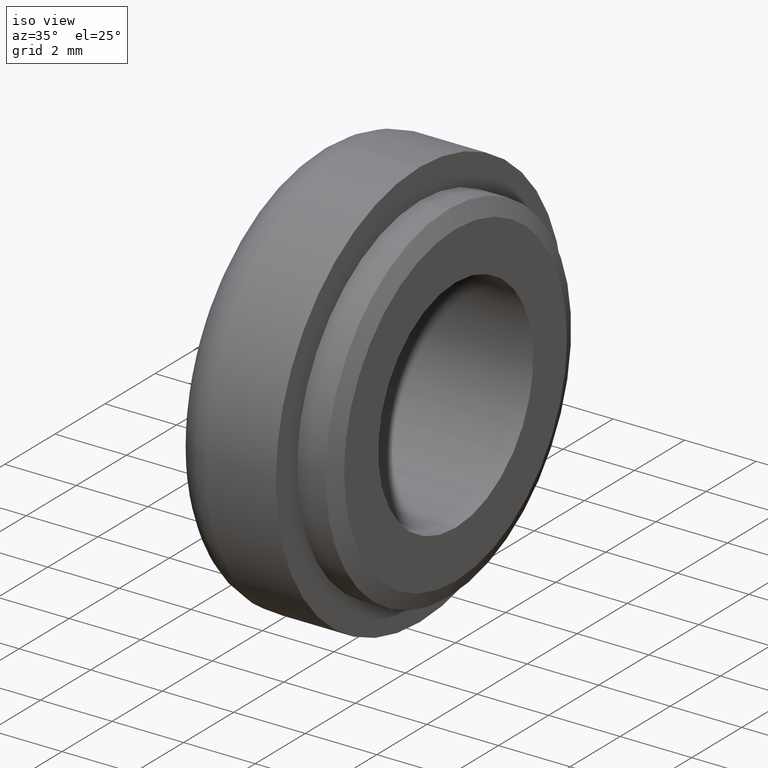
[diagram: clean part render]
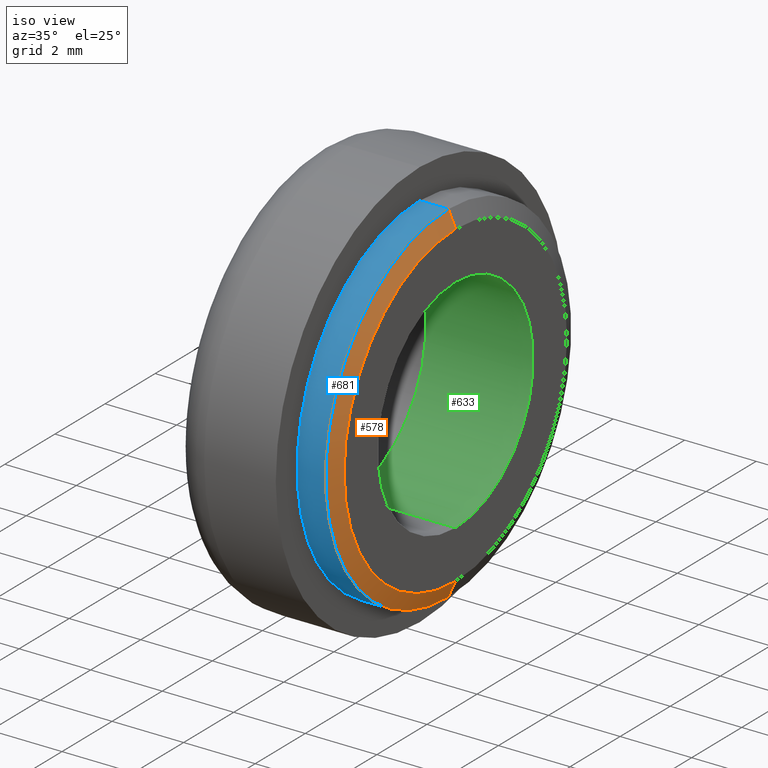
[diagram: same view with three faces highlighted in distinct colors, each labeled with its STEP entity id]
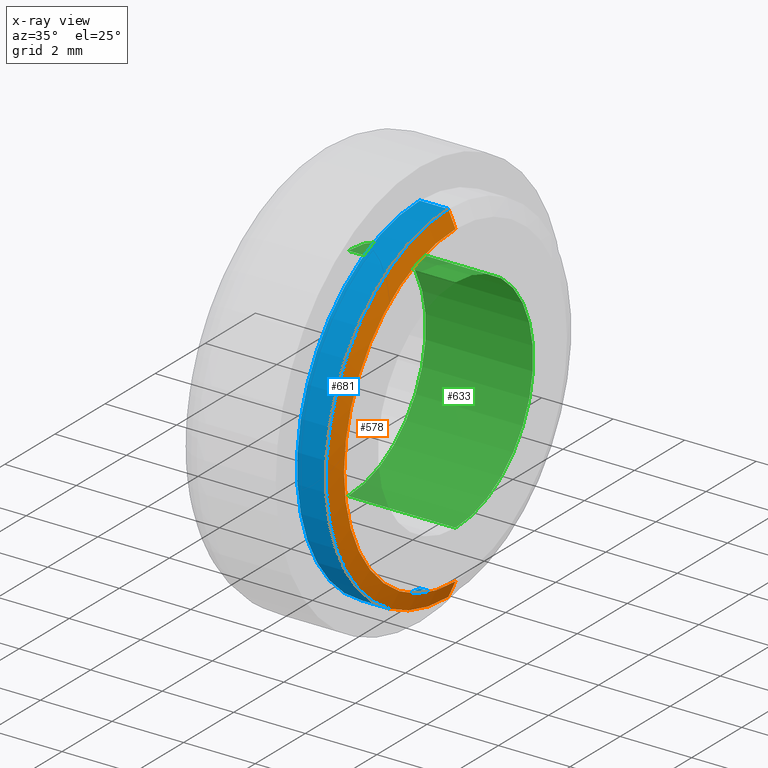
[diagram: x-ray of the same camera — body ghosted, the three highlighted faces saturated]
A machine part, iso view with three faces highlighted in distinct colors.
The next image is the same camera in x-ray (body ghosted, the three faces saturated) — at least one of them is partly hidden behind the body in this view.
Their STEP definitions:

[orange] entity #578 — the highlighted conical surface has half-angle 66.038 deg.
#2 = VERTEX_POINT ( 'NONE', #193 ) ;
#41 = CIRCLE ( 'NONE', #42, 4.450000000000000200 ) ;
#42 = AXIS2_PLACEMENT_3D ( 'NONE', #439, #95, #495 ) ;
#43 = DIRECTION ( 'NONE',  ( 0.0000000000000000000, 0.0000000000000000000, 1.000000000000000000 ) ) ;
#51 = CARTESIAN_POINT ( 'NONE',  ( 3.000000000000002700, 5.449678256205721800E-016, -4.450000000000000200 ) ) ;
#75 = EDGE_CURVE ( 'NONE', #82, #178, #429, .T. ) ;
#82 = VERTEX_POINT ( 'NONE', #404 ) ;
#90 = CIRCLE ( 'NONE', #465, 4.900000000000000400 ) ;
#95 = DIRECTION ( 'NONE',  ( -1.000000000000000000, -0.0000000000000000000, -0.0000000000000000000 ) ) ;
#131 = AXIS2_PLACEMENT_3D ( 'NONE', #603, #550, #43 ) ;
#153 = EDGE_CURVE ( 'NONE', #552, #178, #90, .T. ) ;
#178 = VERTEX_POINT ( 'NONE', #488 ) ;
#193 = CARTESIAN_POINT ( 'NONE',  ( 3.000000000000002700, 5.725223786013876300E-016, -4.450000000000000200 ) ) ;
#210 = CARTESIAN_POINT ( 'NONE',  ( 2.799999999999997200, 6.000769315822031700E-016, -4.900000000000000400 ) ) ;
#246 = ORIENTED_EDGE ( 'NONE', *, *, #75, .T. ) ;
#249 = ORIENTED_EDGE ( 'NONE', *, *, #153, .F. ) ;
#256 = DIRECTION ( 'NONE',  ( -0.4061384660534569400, 0.0000000000000000000, 0.9138115486202530400 ) ) ;
#262 = EDGE_CURVE ( 'NONE', #2, #552, #479, .T. ) ;
#265 = CARTESIAN_POINT ( 'NONE',  ( 2.799999999999997200, 0.0000000000000000000, 0.0000000000000000000 ) ) ;
#266 = VECTOR ( 'NONE', #256, 1000.000000000000000 ) ;
#324 = DIRECTION ( 'NONE',  ( 0.0000000000000000000, 0.0000000000000000000, 1.000000000000000000 ) ) ;
#329 = VECTOR ( 'NONE', #461, 1000.000000000000000 ) ;
#383 = ORIENTED_EDGE ( 'NONE', *, *, #262, .F. ) ;
#404 = CARTESIAN_POINT ( 'NONE',  ( 3.000000000000002700, 0.0000000000000000000, 4.450000000000000200 ) ) ;
#408 = ORIENTED_EDGE ( 'NONE', *, *, #532, .T. ) ;
#429 = LINE ( 'NONE', #589, #266 ) ;
#439 = CARTESIAN_POINT ( 'NONE',  ( 3.000000000000002700, 0.0000000000000000000, 0.0000000000000000000 ) ) ;
#446 = CONICAL_SURFACE ( 'NONE', #131, 4.450000000000000200, 1.152571997215657400 ) ;
#461 = DIRECTION ( 'NONE',  ( -0.4061384660534569400, 1.119096388041678900E-016, -0.9138115486202530400 ) ) ;
#465 = AXIS2_PLACEMENT_3D ( 'NONE', #265, #650, #324 ) ;
#471 = FACE_OUTER_BOUND ( 'NONE', #508, .T. ) ;
#479 = LINE ( 'NONE', #51, #329 ) ;
#488 = CARTESIAN_POINT ( 'NONE',  ( 2.799999999999997200, 0.0000000000000000000, 4.900000000000000400 ) ) ;
#495 = DIRECTION ( 'NONE',  ( 0.0000000000000000000, 0.0000000000000000000, 1.000000000000000000 ) ) ;
#508 = EDGE_LOOP ( 'NONE', ( #383, #408, #246, #249 ) ) ;
#532 = EDGE_CURVE ( 'NONE', #2, #82, #41, .T. ) ;
#550 = DIRECTION ( 'NONE',  ( -1.000000000000000000, -0.0000000000000000000, -0.0000000000000000000 ) ) ;
#552 = VERTEX_POINT ( 'NONE', #210 ) ;
#578 = ADVANCED_FACE ( 'NONE', ( #471 ), #446, .T. ) ;
#589 = CARTESIAN_POINT ( 'NONE',  ( 3.000000000000002700, 0.0000000000000000000, 4.450000000000000200 ) ) ;
#603 = CARTESIAN_POINT ( 'NONE',  ( 3.000000000000002700, 0.0000000000000000000, 0.0000000000000000000 ) ) ;
#650 = DIRECTION ( 'NONE',  ( -1.000000000000000000, -0.0000000000000000000, -0.0000000000000000000 ) ) ;

[blue] entity #681 — the highlighted cylindrical surface (partial cylindrical patch) has radius 4.9 mm, axis along (-1, -0, -0).
#49 = ORIENTED_EDGE ( 'NONE', *, *, #223, .F. ) ;
#54 = CARTESIAN_POINT ( 'NONE',  ( -88.98999999999999500, 6.000769315822031700E-016, -4.900000000000000400 ) ) ;
#64 = EDGE_CURVE ( 'NONE', #178, #389, #290, .T. ) ;
#90 = CIRCLE ( 'NONE', #465, 4.900000000000000400 ) ;
#137 = VECTOR ( 'NONE', #141, 1000.000000000000000 ) ;
#141 = DIRECTION ( 'NONE',  ( -1.000000000000000000, -0.0000000000000000000, -0.0000000000000000000 ) ) ;
#153 = EDGE_CURVE ( 'NONE', #552, #178, #90, .T. ) ;
#164 = LINE ( 'NONE', #54, #606 ) ;
#178 = VERTEX_POINT ( 'NONE', #488 ) ;
#185 = DIRECTION ( 'NONE',  ( -1.000000000000000000, -0.0000000000000000000, -0.0000000000000000000 ) ) ;
#192 = CARTESIAN_POINT ( 'NONE',  ( 2.000000000000001800, 0.0000000000000000000, 0.0000000000000000000 ) ) ;
#210 = CARTESIAN_POINT ( 'NONE',  ( 2.799999999999997200, 6.000769315822031700E-016, -4.900000000000000400 ) ) ;
#222 = EDGE_LOOP ( 'NONE', ( #296, #520, #257, #49 ) ) ;
#223 = EDGE_CURVE ( 'NONE', #666, #389, #562, .T. ) ;
#232 = AXIS2_PLACEMENT_3D ( 'NONE', #498, #442, #660 ) ;
#252 = DIRECTION ( 'NONE',  ( 0.0000000000000000000, 0.0000000000000000000, 1.000000000000000000 ) ) ;
#257 = ORIENTED_EDGE ( 'NONE', *, *, #64, .T. ) ;
#265 = CARTESIAN_POINT ( 'NONE',  ( 2.799999999999997200, 0.0000000000000000000, 0.0000000000000000000 ) ) ;
#290 = LINE ( 'NONE', #679, #137 ) ;
#296 = ORIENTED_EDGE ( 'NONE', *, *, #311, .F. ) ;
#311 = EDGE_CURVE ( 'NONE', #552, #666, #164, .T. ) ;
#324 = DIRECTION ( 'NONE',  ( 0.0000000000000000000, 0.0000000000000000000, 1.000000000000000000 ) ) ;
#355 = AXIS2_PLACEMENT_3D ( 'NONE', #192, #585, #252 ) ;
#389 = VERTEX_POINT ( 'NONE', #481 ) ;
#442 = DIRECTION ( 'NONE',  ( -1.000000000000000000, -0.0000000000000000000, -0.0000000000000000000 ) ) ;
#465 = AXIS2_PLACEMENT_3D ( 'NONE', #265, #650, #324 ) ;
#481 = CARTESIAN_POINT ( 'NONE',  ( 2.000000000000001800, 0.0000000000000000000, 4.900000000000000400 ) ) ;
#488 = CARTESIAN_POINT ( 'NONE',  ( 2.799999999999997200, 0.0000000000000000000, 4.900000000000000400 ) ) ;
#498 = CARTESIAN_POINT ( 'NONE',  ( -88.98999999999999500, 0.0000000000000000000, 0.0000000000000000000 ) ) ;
#520 = ORIENTED_EDGE ( 'NONE', *, *, #153, .T. ) ;
#552 = VERTEX_POINT ( 'NONE', #210 ) ;
#554 = CARTESIAN_POINT ( 'NONE',  ( 2.000000000000001800, 6.000769315822031700E-016, -4.900000000000000400 ) ) ;
#562 = CIRCLE ( 'NONE', #355, 4.900000000000000400 ) ;
#585 = DIRECTION ( 'NONE',  ( -1.000000000000000000, -0.0000000000000000000, -0.0000000000000000000 ) ) ;
#606 = VECTOR ( 'NONE', #185, 1000.000000000000000 ) ;
#650 = DIRECTION ( 'NONE',  ( -1.000000000000000000, -0.0000000000000000000, -0.0000000000000000000 ) ) ;
#660 = DIRECTION ( 'NONE',  ( 0.0000000000000000000, 0.0000000000000000000, 1.000000000000000000 ) ) ;
#666 = VERTEX_POINT ( 'NONE', #554 ) ;
#679 = CARTESIAN_POINT ( 'NONE',  ( -88.98999999999999500, 0.0000000000000000000, 4.900000000000000400 ) ) ;
#681 = ADVANCED_FACE ( 'NONE', ( #705 ), #691, .T. ) ;
#691 = CYLINDRICAL_SURFACE ( 'NONE', #232, 4.900000000000000400 ) ;
#705 = FACE_OUTER_BOUND ( 'NONE', #222, .T. ) ;

[green] entity #633 — the highlighted cylindrical surface (partial cylindrical patch) has radius 3.1 mm, axis along (-1, -0, -0).
#18 = CIRCLE ( 'NONE', #497, 3.100000000000000100 ) ;
#34 = CARTESIAN_POINT ( 'NONE',  ( 0.0000000000000000000, 0.0000000000000000000, 0.0000000000000000000 ) ) ;
#39 = CARTESIAN_POINT ( 'NONE',  ( -88.98999999999999500, 0.0000000000000000000, 3.100000000000000500 ) ) ;
#56 = EDGE_LOOP ( 'NONE', ( #647, #478, #308, #517 ) ) ;
#89 = DIRECTION ( 'NONE',  ( 0.0000000000000000000, 0.0000000000000000000, 1.000000000000000000 ) ) ;
#107 = CARTESIAN_POINT ( 'NONE',  ( 3.000000000000002700, 0.0000000000000000000, 0.0000000000000000000 ) ) ;
#132 = LINE ( 'NONE', #39, #188 ) ;
#139 = AXIS2_PLACEMENT_3D ( 'NONE', #566, #608, #441 ) ;
#158 = CARTESIAN_POINT ( 'NONE',  ( -88.98999999999999500, 3.796405077356795400E-016, -3.100000000000000500 ) ) ;
#160 = EDGE_CURVE ( 'NONE', #281, #559, #18, .T. ) ;
#166 = DIRECTION ( 'NONE',  ( -1.000000000000000000, -0.0000000000000000000, -0.0000000000000000000 ) ) ;
#173 = DIRECTION ( 'NONE',  ( 0.0000000000000000000, 0.0000000000000000000, 1.000000000000000000 ) ) ;
#188 = VECTOR ( 'NONE', #273, 1000.000000000000000 ) ;
#198 = EDGE_CURVE ( 'NONE', #592, #559, #706, .T. ) ;
#240 = CIRCLE ( 'NONE', #693, 3.100000000000000500 ) ;
#264 = VECTOR ( 'NONE', #166, 1000.000000000000000 ) ;
#273 = DIRECTION ( 'NONE',  ( -1.000000000000000000, -0.0000000000000000000, -0.0000000000000000000 ) ) ;
#281 = VERTEX_POINT ( 'NONE', #632 ) ;
#286 = CYLINDRICAL_SURFACE ( 'NONE', #139, 3.100000000000000500 ) ;
#308 = ORIENTED_EDGE ( 'NONE', *, *, #537, .T. ) ;
#380 = CARTESIAN_POINT ( 'NONE',  ( 0.0000000000000000000, 3.796405077356794900E-016, -3.100000000000000100 ) ) ;
#414 = EDGE_CURVE ( 'NONE', #417, #592, #240, .T. ) ;
#417 = VERTEX_POINT ( 'NONE', #622 ) ;
#431 = DIRECTION ( 'NONE',  ( -1.000000000000000000, -0.0000000000000000000, -0.0000000000000000000 ) ) ;
#441 = DIRECTION ( 'NONE',  ( 0.0000000000000000000, 0.0000000000000000000, 1.000000000000000000 ) ) ;
#478 = ORIENTED_EDGE ( 'NONE', *, *, #414, .F. ) ;
#497 = AXIS2_PLACEMENT_3D ( 'NONE', #34, #431, #89 ) ;
#502 = DIRECTION ( 'NONE',  ( -1.000000000000000000, -0.0000000000000000000, -0.0000000000000000000 ) ) ;
#517 = ORIENTED_EDGE ( 'NONE', *, *, #160, .T. ) ;
#537 = EDGE_CURVE ( 'NONE', #417, #281, #132, .T. ) ;
#559 = VERTEX_POINT ( 'NONE', #380 ) ;
#563 = CARTESIAN_POINT ( 'NONE',  ( 3.000000000000002700, 3.796405077356795400E-016, -3.100000000000000500 ) ) ;
#566 = CARTESIAN_POINT ( 'NONE',  ( -88.98999999999999500, 0.0000000000000000000, 0.0000000000000000000 ) ) ;
#592 = VERTEX_POINT ( 'NONE', #563 ) ;
#608 = DIRECTION ( 'NONE',  ( -1.000000000000000000, -0.0000000000000000000, -0.0000000000000000000 ) ) ;
#622 = CARTESIAN_POINT ( 'NONE',  ( 3.000000000000002700, 0.0000000000000000000, 3.100000000000000500 ) ) ;
#632 = CARTESIAN_POINT ( 'NONE',  ( 0.0000000000000000000, 0.0000000000000000000, 3.100000000000000100 ) ) ;
#633 = ADVANCED_FACE ( 'NONE', ( #724 ), #286, .F. ) ;
#647 = ORIENTED_EDGE ( 'NONE', *, *, #198, .F. ) ;
#693 = AXIS2_PLACEMENT_3D ( 'NONE', #107, #502, #173 ) ;
#706 = LINE ( 'NONE', #158, #264 ) ;
#724 = FACE_OUTER_BOUND ( 'NONE', #56, .T. ) ;